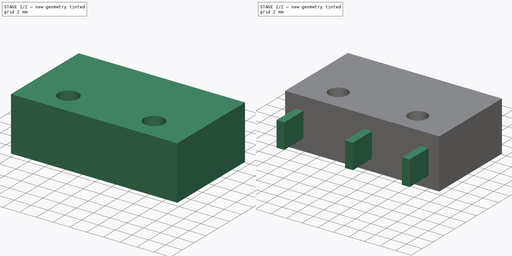
[diagram: build sequence overview — one tinted view per stage of 2, left to right]
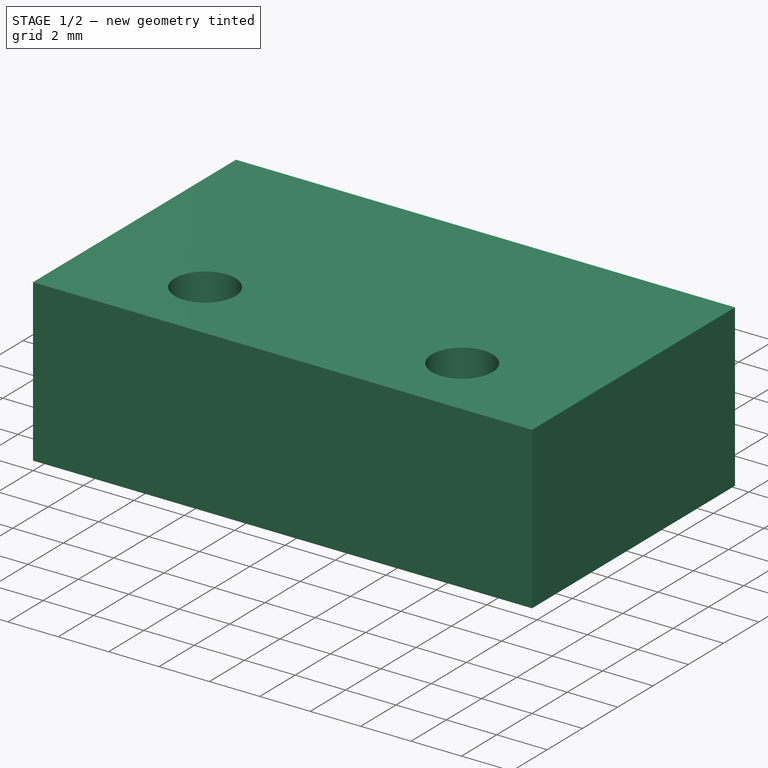
[diagram: stage 1 of 2 — iso view after this stage's code; geometry added in this stage tinted green]
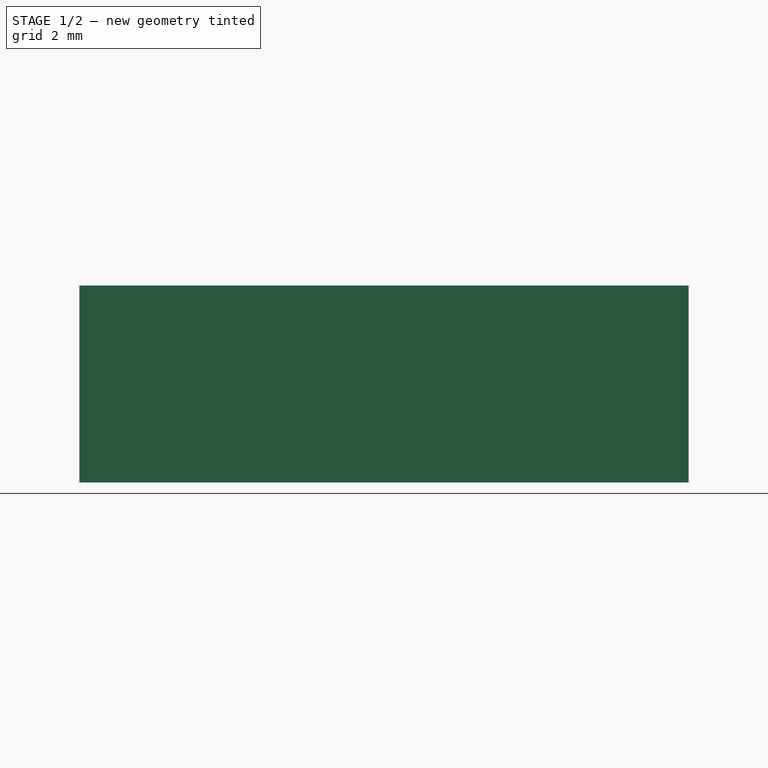
[diagram: stage 1 of 2 — front view after this stage's code; geometry added in this stage tinted green]
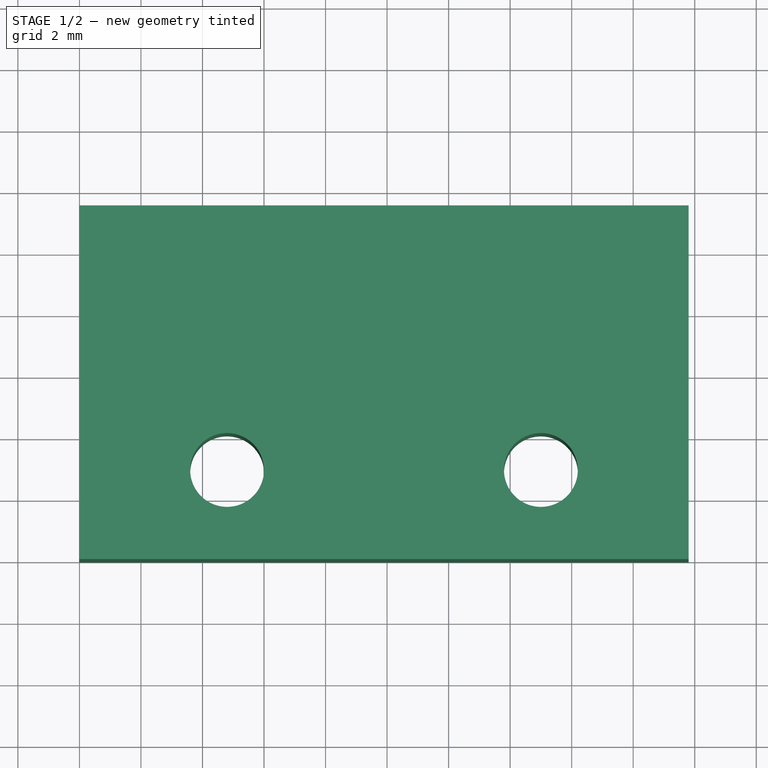
[diagram: stage 1 of 2 — top view after this stage's code; geometry added in this stage tinted green]
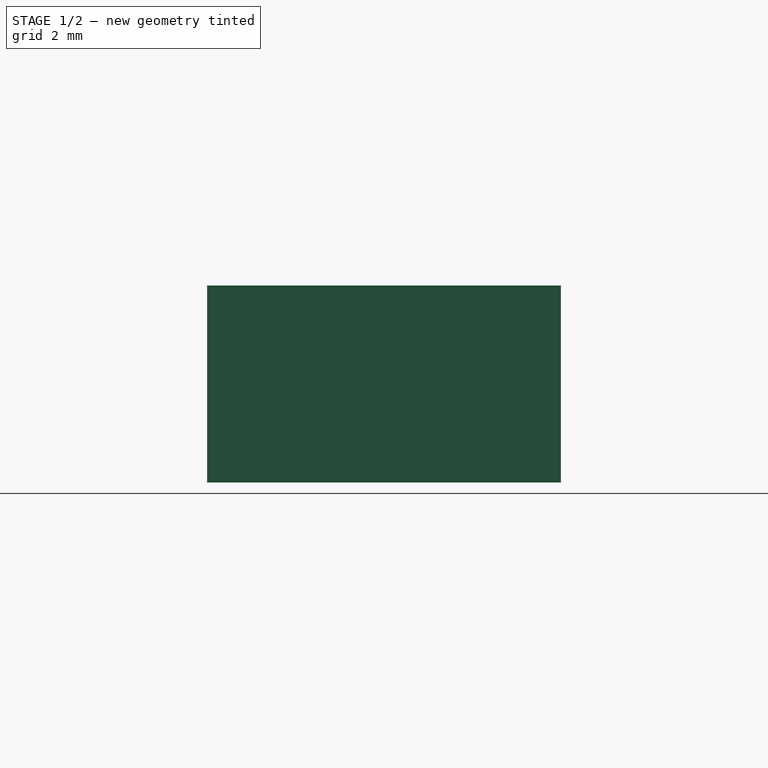
[diagram: stage 1 of 2 — right view after this stage's code; geometry added in this stage tinted green]
FCSTD DOCUMENT  (FreeCAD 0.16R6707 (Git))
Label: fin_de_course
License: All rights reserved
LicenseURL: http://en.wikipedia.org/wiki/All_rights_reserved
objects: Sketcher::SketchObject×3, PartDesign::Pad×2, PartDesign::Pocket×1
note: 9 computed .brp shape members not serialized (recipe doc carries the construction recipe); baked Part::Feature solids carry a one-line shape summary decoded from their .brp

FEATURE [Sketcher::SketchObject] Sketch
  sketch-geometry (4):
    g0: LineSegment StartX=0 StartY=0 StartZ=0 EndX=19.8 EndY=0 EndZ=0
    g1: LineSegment StartX=19.8 StartY=0 StartZ=0 EndX=19.8 EndY=11.5 EndZ=0
    g2: LineSegment StartX=19.8 StartY=11.5 StartZ=0 EndX=0 EndY=11.5 EndZ=0
    g3: LineSegment StartX=0 StartY=11.5 StartZ=0 EndX=0 EndY=0 EndZ=0
  constraints (11):
    c: Coincident(g0,g1)
    c: Coincident(g1,g2)
    c: Coincident(g2,g3)
    c: Coincident(g3,g0)
    c: Horizontal(g0)
    c: Horizontal(g2)
    c: Vertical(g1)
    c: Vertical(g3)
    c: Coincident(g0,g-1)
    c: Distance(g3) = 11.5
    c: Distance(g0) = 19.8
FEATURE [PartDesign::Pad] Pad
  Length = 6.4
  Length2 = 100
  Sketch = -> Sketch
  Type = 0
FEATURE [Sketcher::SketchObject] Sketch001
  Placement = pos=(0,0,6.4) rot=(0,0,1;0rad)
  Support = -> Pad [Face6]
  sketch-geometry (4):
    g0: GeomPoint [constr] X=4.8 Y=2.9 Z=0
    g1: GeomPoint [constr] X=15 Y=2.9 Z=0
    g2: Circle CenterX=4.8 CenterY=2.9 CenterZ=0 NormalX=0 NormalY=0 NormalZ=1 Radius=1.2
    g3: Circle CenterX=15 CenterY=2.9 CenterZ=0 NormalX=0 NormalY=0 NormalZ=1 Radius=1.2
  constraints (8):
    c: DistanceY(g0) = 2.9
    c: DistanceY(g1,g0) = 0
    c: DistanceX(g0) = 4.8
    c: DistanceX(g1) = 15
    c: Coincident(g2,g0)
    c: Coincident(g3,g1)
    c: Radius(g2) = 1.2
    c: Equal(g2,g3)
FEATURE [PartDesign::Pocket] Pocket
  Length = 5
  Sketch = -> Sketch001
  Type = 1
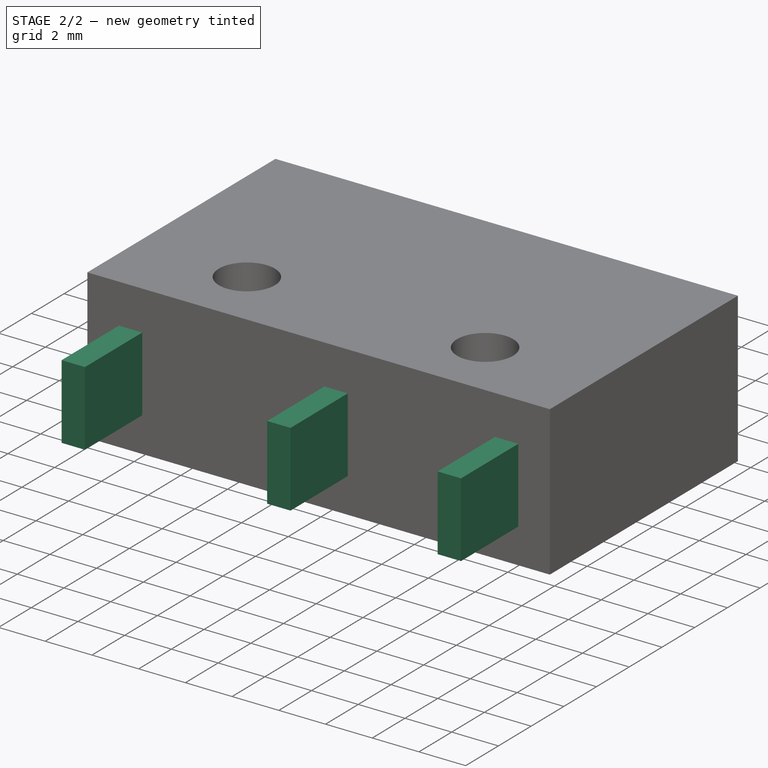
[diagram: stage 2 of 2 — iso view after this stage's code; geometry added in this stage tinted green]
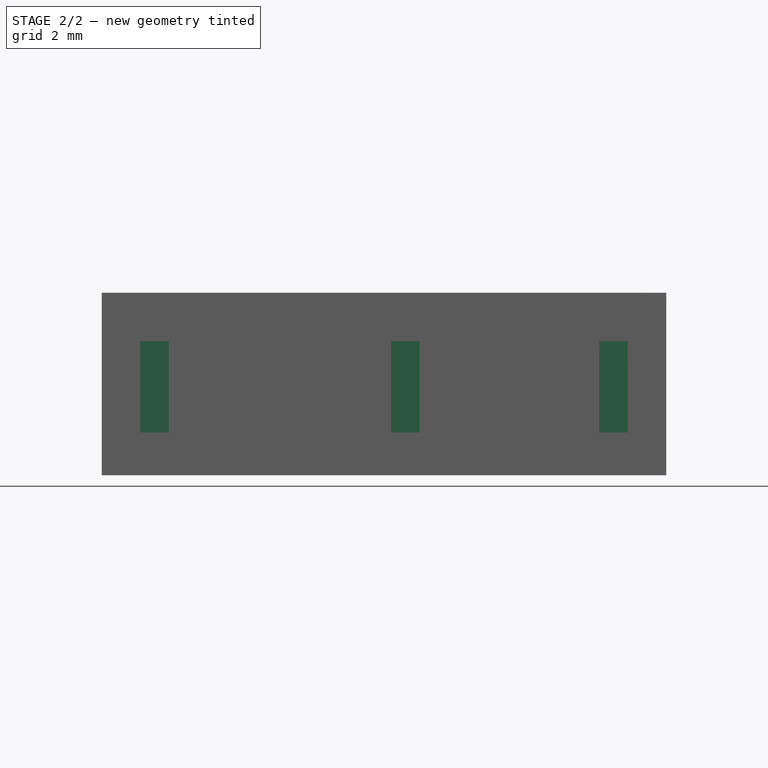
[diagram: stage 2 of 2 — front view after this stage's code; geometry added in this stage tinted green]
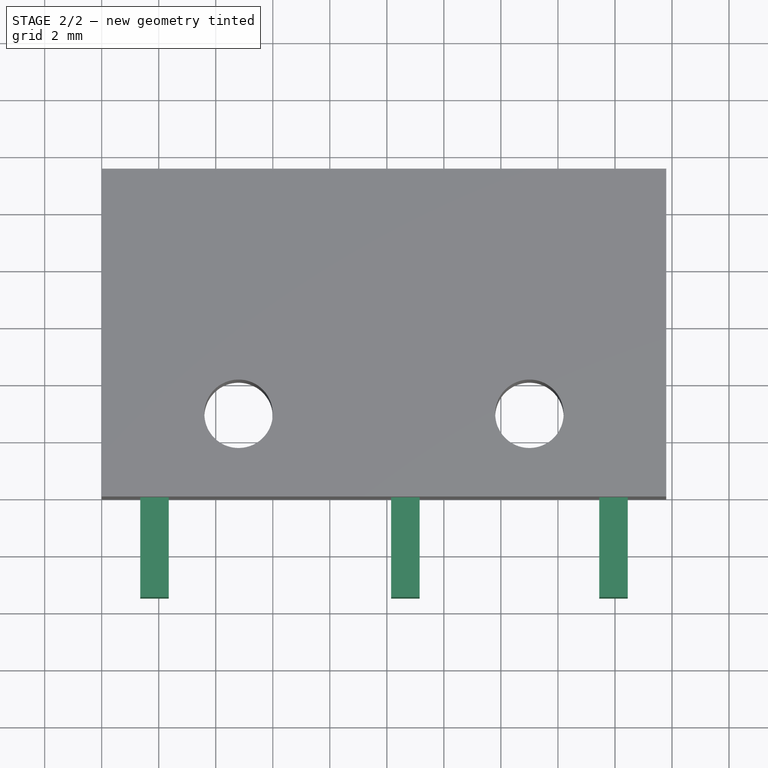
[diagram: stage 2 of 2 — top view after this stage's code; geometry added in this stage tinted green]
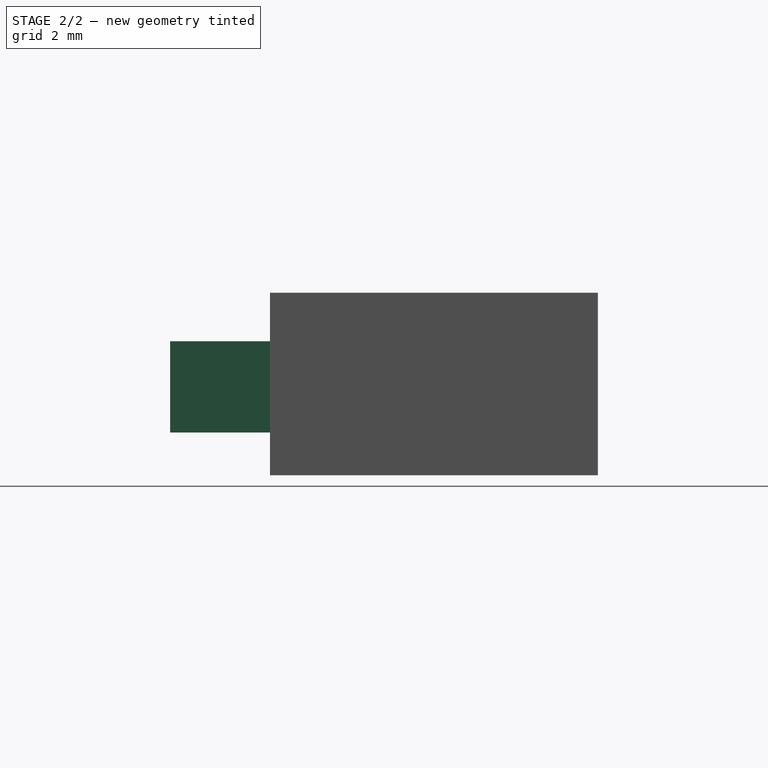
[diagram: stage 2 of 2 — right view after this stage's code; geometry added in this stage tinted green]
FEATURE [Sketcher::SketchObject] Sketch002
  Placement = pos=(0,0,0) rot=(1,0,0;1.5708rad)
  Support = -> Pocket [Face1]
  sketch-geometry (15):
    g0: GeomPoint [constr] X=1.35 Y=1.5 Z=0
    g1: GeomPoint [constr] X=10.15 Y=1.5 Z=0
    g2: GeomPoint [constr] X=17.45 Y=1.5 Z=0
    g3: LineSegment StartX=1.35 StartY=1.5 StartZ=0 EndX=2.35 EndY=1.5 EndZ=0
    g4: LineSegment StartX=2.35 StartY=1.5 StartZ=0 EndX=2.35 EndY=4.7 EndZ=0
    g5: LineSegment StartX=2.35 StartY=4.7 StartZ=0 EndX=1.35 EndY=4.7 EndZ=0
    g6: LineSegment StartX=1.35 StartY=4.7 StartZ=0 EndX=1.35 EndY=1.5 EndZ=0
    g7: LineSegment StartX=10.15 StartY=1.5 StartZ=0 EndX=11.15 EndY=1.5 EndZ=0
    g8: LineSegment StartX=11.15 StartY=1.5 StartZ=0 EndX=11.15 EndY=4.7 EndZ=0
    g9: LineSegment StartX=11.15 StartY=4.7 StartZ=0 EndX=10.15 EndY=4.7 EndZ=0
    g10: LineSegment StartX=10.15 StartY=4.7 StartZ=0 EndX=10.15 EndY=1.5 EndZ=0
    g11: LineSegment StartX=17.45 StartY=1.5 StartZ=0 EndX=18.45 EndY=1.5 EndZ=0
    g12: LineSegment StartX=18.45 StartY=1.5 StartZ=0 EndX=18.45 EndY=4.7 EndZ=0
    g13: LineSegment StartX=18.45 StartY=4.7 StartZ=0 EndX=17.45 EndY=4.7 EndZ=0
    g14: LineSegment StartX=17.45 StartY=4.7 StartZ=0 EndX=17.45 EndY=1.5 EndZ=0
  constraints (39):
    c: DistanceY(g0) = 1.5
    c: DistanceY(g1,g0) = 0
    c: DistanceY(g2,g1) = 0
    c: DistanceX(g0) = 1.35
    c: DistanceX(g0,g1) = 8.8
    c: DistanceX(g1,g2) = 7.3
    c: Coincident(g3,g4)
    c: Coincident(g4,g5)
    c: Coincident(g5,g6)
    c: Coincident(g6,g3)
    c: Horizontal(g3)
    c: Horizontal(g5)
    c: Vertical(g4)
    c: Vertical(g6)
    c: Coincident(g3,g0)
    c: Coincident(g7,g8)
    c: Coincident(g8,g9)
    c: Coincident(g9,g10)
    c: Coincident(g10,g7)
    c: Horizontal(g7)
    c: Horizontal(g9)
    c: Vertical(g8)
    c: Vertical(g10)
    c: Coincident(g7,g1)
    c: Coincident(g11,g12)
    c: Coincident(g12,g13)
    c: Coincident(g13,g14)
    c: Coincident(g14,g11)
    c: Horizontal(g11)
    c: Horizontal(g13)
    c: Vertical(g12)
    c: Vertical(g14)
    c: Coincident(g11,g2)
    c: Distance(g6) = 3.2
    c: Distance(g10) = 3.2
    c: Distance(g14) = 3.2
    c: Distance(g5) = 1
    c: Distance(g9) = 1
    c: Distance(g13) = 1
FEATURE [PartDesign::Pad] Pad001
  Length = 3.5
  Length2 = 100
  Sketch = -> Sketch002
  Type = 0
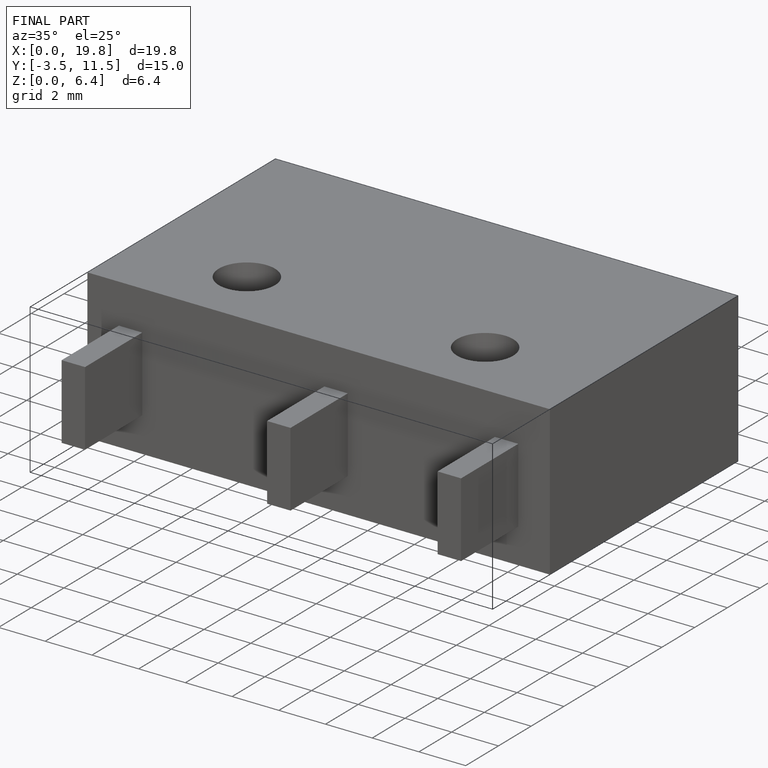
[diagram: finished part — iso view with bounding-box wireframe]
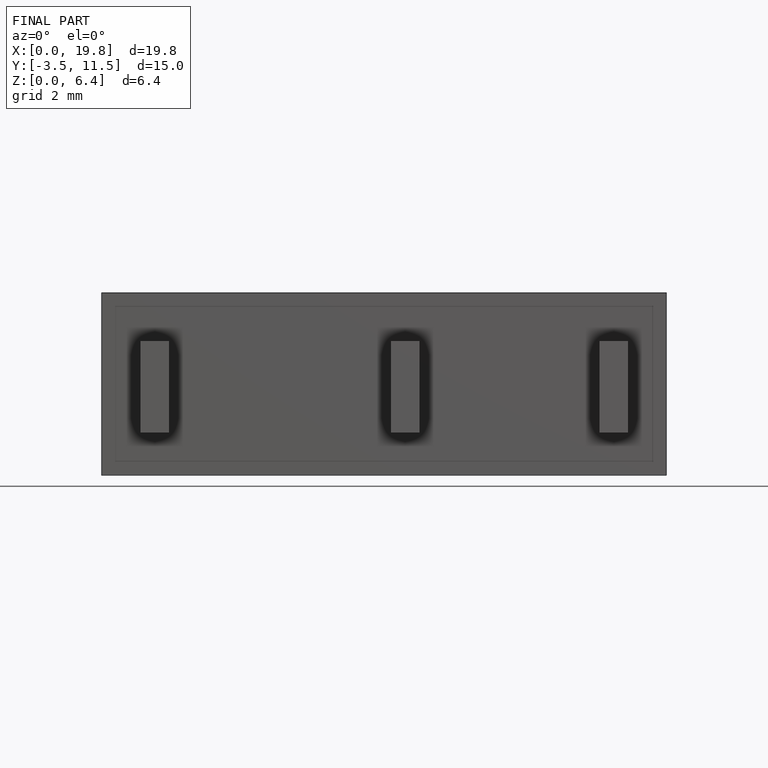
[diagram: finished part — front view with bounding-box wireframe]
